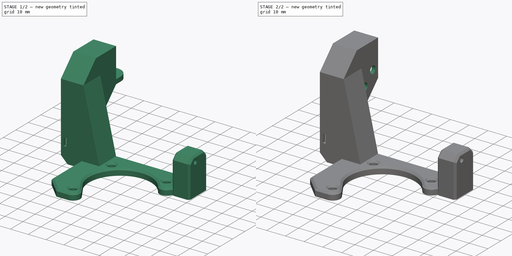
[diagram: build sequence overview — one tinted view per stage of 2, left to right]
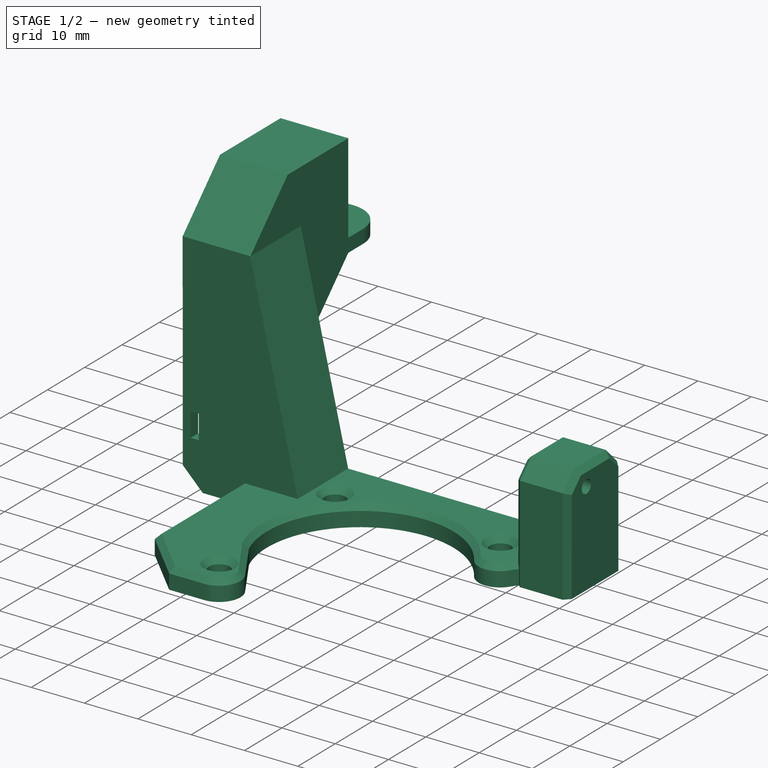
[diagram: stage 1 of 2 — iso view after this stage's code; geometry added in this stage tinted green]
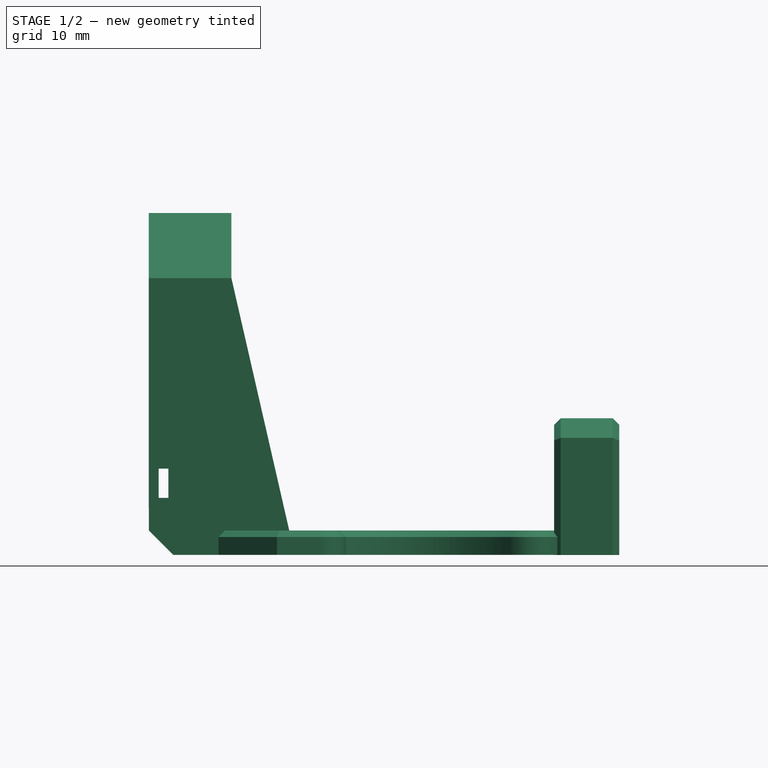
[diagram: stage 1 of 2 — front view after this stage's code; geometry added in this stage tinted green]
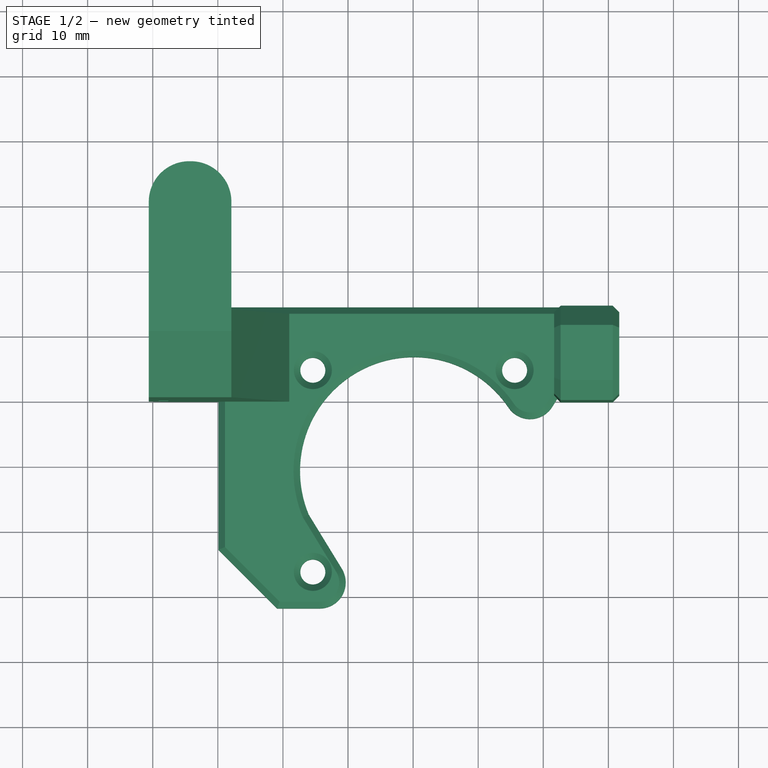
[diagram: stage 1 of 2 — top view after this stage's code; geometry added in this stage tinted green]
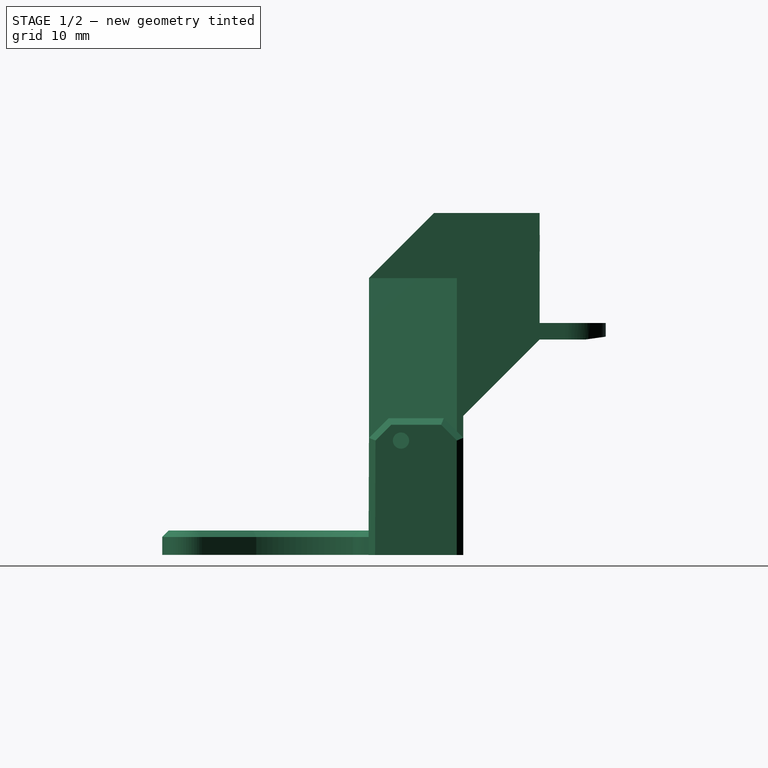
[diagram: stage 1 of 2 — right view after this stage's code; geometry added in this stage tinted green]
FCSTD DOCUMENT  (FreeCAD 0.18R16131 (Git))
Label: StepperMount_ChainHolder
License: All rights reserved
LicenseURL: http://en.wikipedia.org/wiki/All_rights_reserved
objects: Sketcher::SketchObject×3, PartDesign::Pocket×3, Part::Feature×1, PartDesign::FeatureBase×1, PartDesign::Body×1
note: 12 computed .brp shape members not serialized (recipe doc carries the construction recipe); baked Part::Feature solids carry a one-line shape summary decoded from their .brp

FEATURE [Part::Feature] E3DV6_Chain_Stepper_Mount_V4001001001_solid  label="E3DV6_Chain_Stepper_Mount_V4003 (Solid)"
  shape: bbox 72.29 x 68.14 x 52.54 mm, 3258 faces (baked)
FEATURE [PartDesign::FeatureBase] BaseFeature
  BaseFeature = -> E3DV6_Chain_Stepper_Mount_V4001001001_solid
FEATURE [Sketcher::SketchObject] Sketch
  ExternalGeometry = -> [BaseFeature]
  MapMode = 5
  Placement = pos=(0,0,12.7233) rot=(1,0,0;3.14159rad)
  Support = -> [BaseFeature]
  sketch-geometry (6):
    g0: LineSegment StartX=2.30026 StartY=13.7805 StartZ=0 EndX=0.075364 EndY=13.7644 EndZ=0
    g1: LineSegment StartX=0.075364 StartY=13.7644 StartZ=0 EndX=0.080072 EndY=16.1865 EndZ=0
    g2: LineSegment StartX=0.080072 StartY=16.1865 StartZ=0 EndX=-11.5934 EndY=16.2053 EndZ=0
    g3: LineSegment StartX=-11.5934 StartY=16.2053 StartZ=0 EndX=-11.5931 EndY=0.817865 EndZ=0
    g4: LineSegment StartX=-11.5931 StartY=0.817865 StartZ=0 EndX=3.33354 EndY=0.799831 EndZ=0
    g5: LineSegment StartX=3.33354 StartY=0.799831 StartZ=0 EndX=2.30026 EndY=13.7805 EndZ=0
  constraints (6):
    c: Coincident(g0,g1)
    c: Coincident(g1,g2)
    c: Coincident(g2,g3)
    c: Coincident(g3,g4)
    c: Coincident(g4,g5)
    c: Coincident(g5,g0)
FEATURE [PartDesign::Pocket] Pocket
  BaseFeature = -> BaseFeature
  Length = 4
  Length2 = 100
  Profile = -> Sketch
  Type = 0
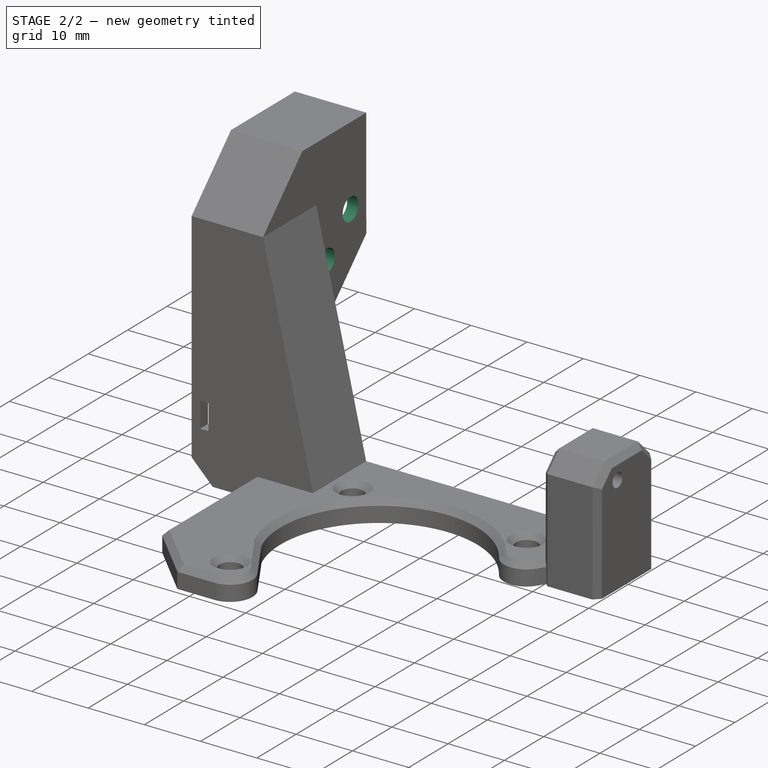
[diagram: stage 2 of 2 — iso view after this stage's code; geometry added in this stage tinted green]
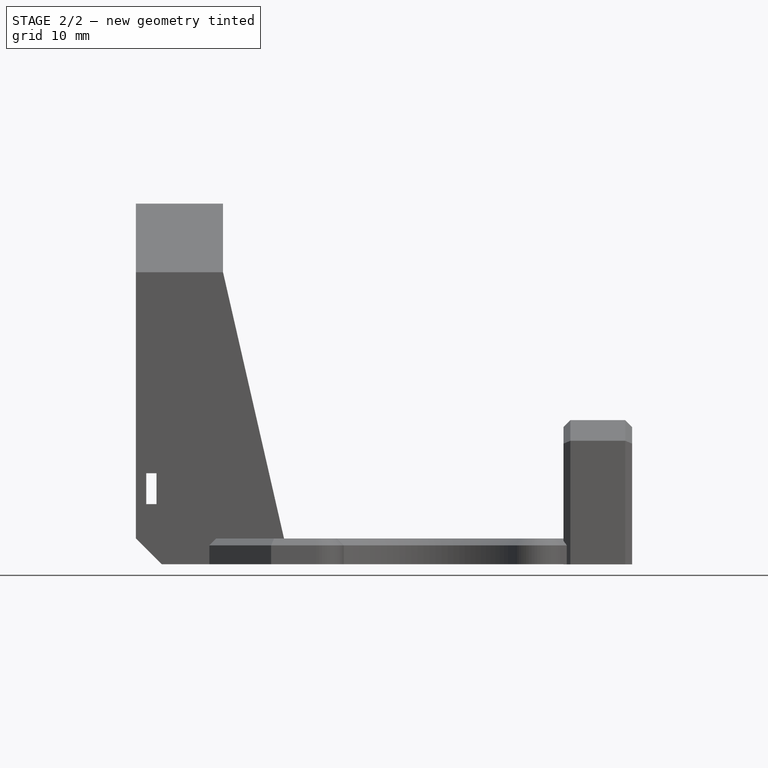
[diagram: stage 2 of 2 — front view after this stage's code; geometry added in this stage tinted green]
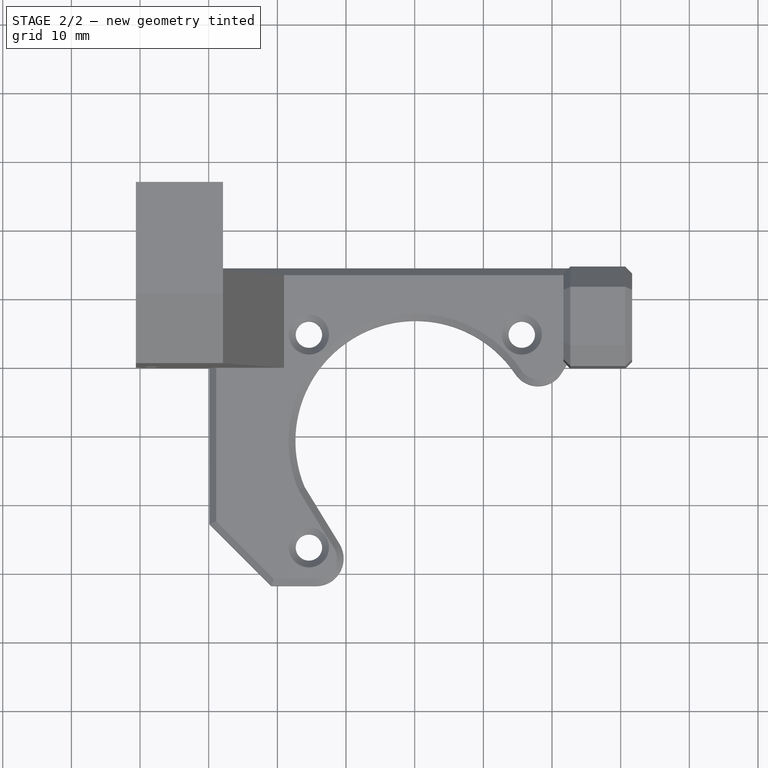
[diagram: stage 2 of 2 — top view after this stage's code; geometry added in this stage tinted green]
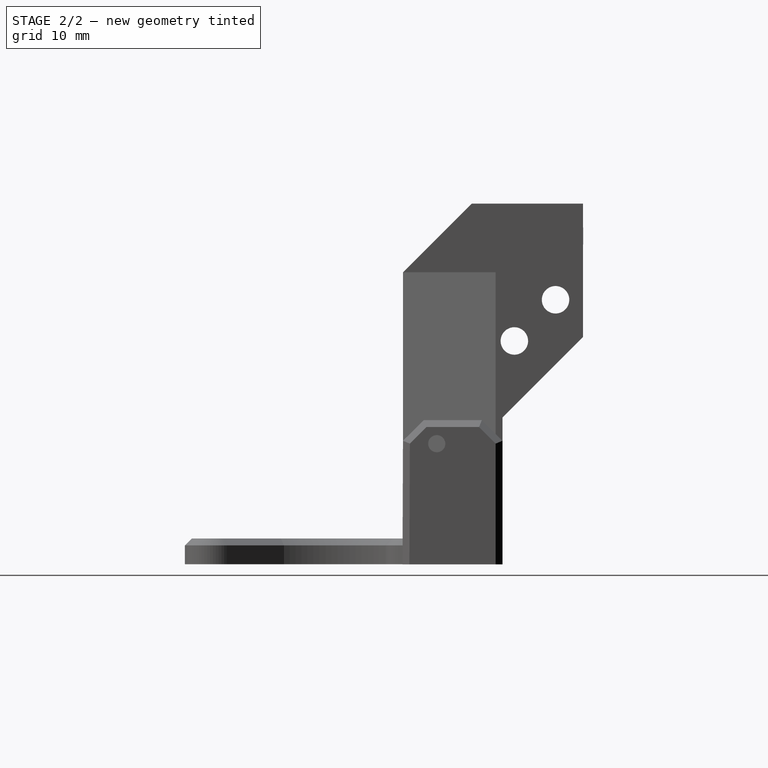
[diagram: stage 2 of 2 — right view after this stage's code; geometry added in this stage tinted green]
FEATURE [Sketcher::SketchObject] Sketch001
  MapMode = 5
  Placement = pos=(0,0,1.80133) rot=(0,0,1;0rad)
  Support = -> [Pocket]
  sketch-geometry (6):
    g0: LineSegment StartX=0 StartY=-29.29 StartZ=0 EndX=0.077537 EndY=-13.7749 EndZ=0
    g1: LineSegment StartX=0.077537 StartY=-13.7749 StartZ=0 EndX=2.56079 EndY=-13.7677 EndZ=0
    g2: LineSegment StartX=2.56079 StartY=-13.7677 StartZ=0 EndX=2.09448 EndY=-0.787297 EndZ=0
    g3: LineSegment StartX=2.09448 StartY=-0.787297 StartZ=0 EndX=-23.185 EndY=2.39473 EndZ=0
    g4: LineSegment StartX=-23.185 StartY=2.39473 StartZ=0 EndX=-23.0538 EndY=-27.752 EndZ=0
    g5: LineSegment StartX=-23.0538 StartY=-27.752 StartZ=0 EndX=0 EndY=-29.29 EndZ=0
  constraints (7):
    c: Coincident(g0,g1)
    c: Coincident(g1,g2)
    c: Coincident(g2,g3)
    c: Coincident(g3,g4)
    c: Coincident(g4,g5)
    c: Coincident(g0,g5)
    c: PointOnObject(g0,g-2)
FEATURE [PartDesign::Pocket] Pocket001
  BaseFeature = -> Pocket
  Length = 14
  Length2 = 100
  Profile = -> Sketch001
  Type = 0
FEATURE [Sketcher::SketchObject] Sketch002
  ExternalGeometry = -> [Pocket001]
  MapMode = 5
  Placement = pos=(0.0869373,0,0) rot=(0.57735,-0.57735,-0.57735;2.0944rad)
  Support = -> [Pocket001]
  sketch-geometry (2):
    g0: Circle CenterX=17.7765 CenterY=4.69233 CenterZ=0 NormalX=0 NormalY=0 NormalZ=1 AngleXU=0 Radius=2
    g1: Circle CenterX=23.7765 CenterY=-1.30767 CenterZ=0 NormalX=0 NormalY=0 NormalZ=1 AngleXU=0 Radius=2
  constraints (6):
    c: Radius(g0) = 2
    c: DistanceX(g-3,g0) = 4
    c: Equal(g0,g1) = 2
    c: DistanceX(g-3,g1) = 10
    c: DistanceY(g1,g0) = 6
    c: DistanceY(g0,g-4) = 12
FEATURE [PartDesign::Pocket] Pocket002
  BaseFeature = -> Pocket001
  Length = 5
  Length2 = 100
  Profile = -> Sketch002
  Type = 0
FEATURE [PartDesign::Body] Body
  BaseFeature = -> E3DV6_Chain_Stepper_Mount_V4001001001_solid
  Group = -> [BaseFeature,Sketch,Pocket,Sketch001,Pocket001,Sketch002,Pocket002]
  Origin = -> Origin
  Tip = -> Pocket002
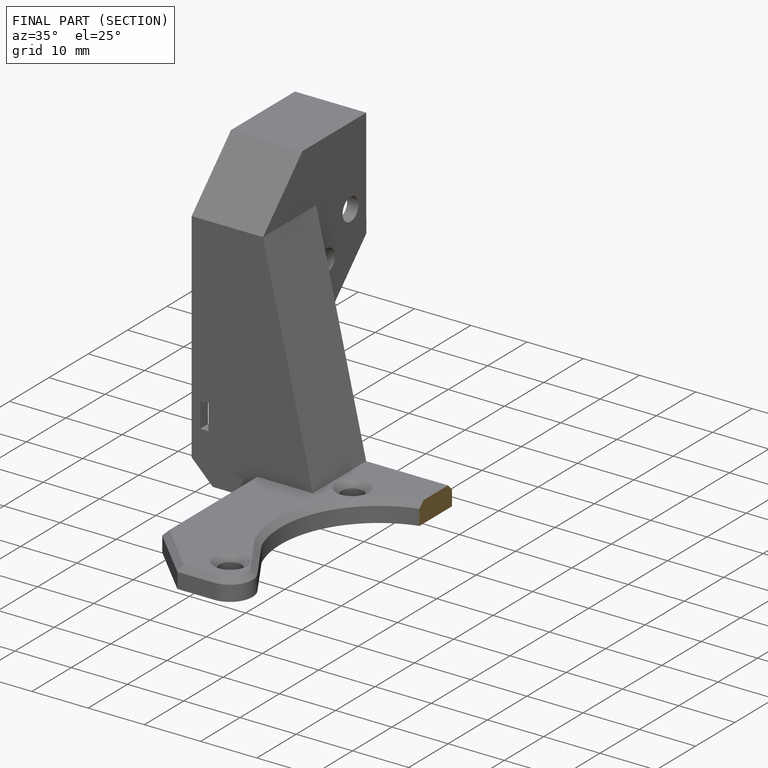
[diagram: finished part — half-section view (interior)]
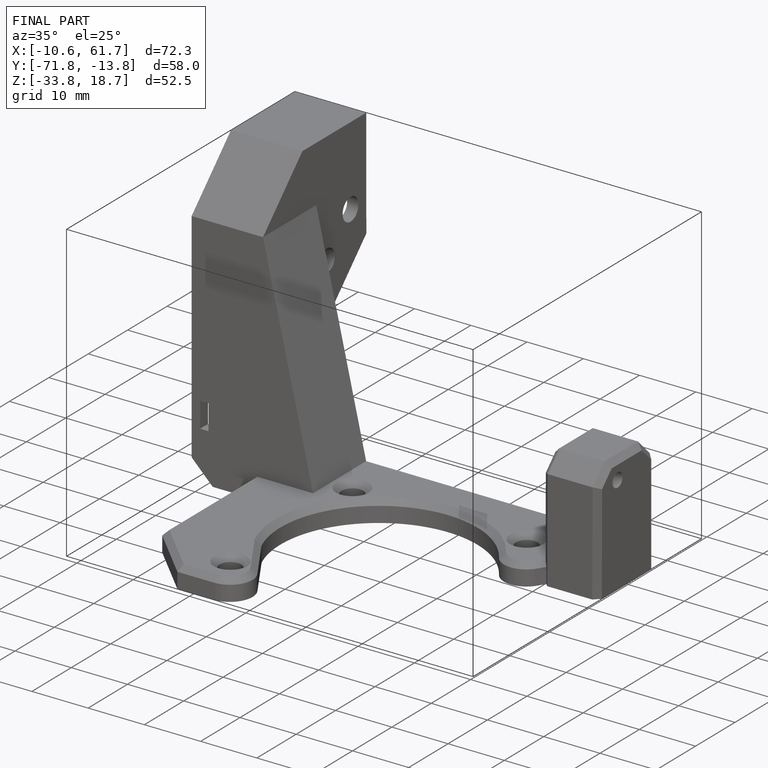
[diagram: finished part — iso view with bounding-box wireframe]
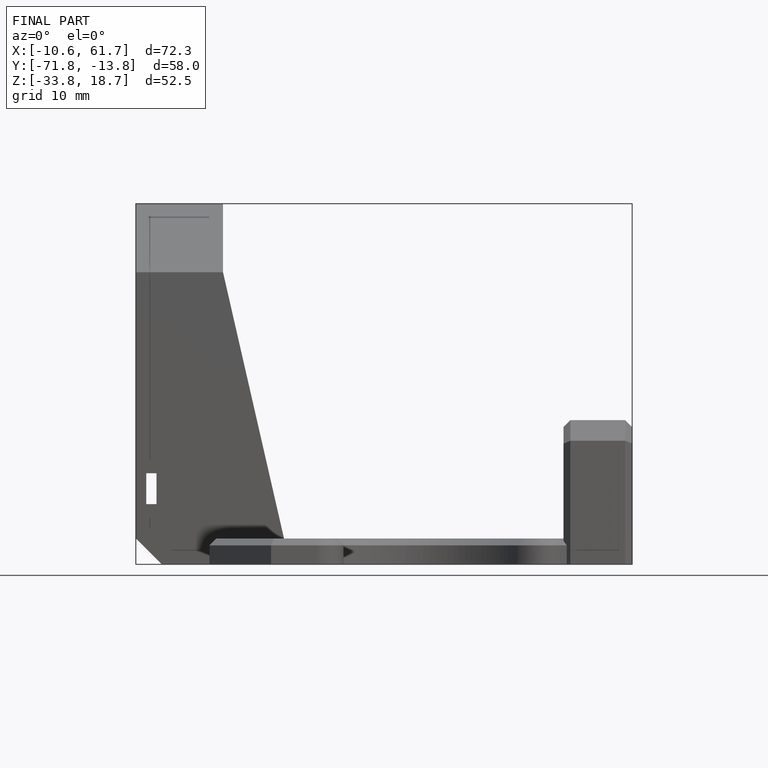
[diagram: finished part — front view with bounding-box wireframe]
